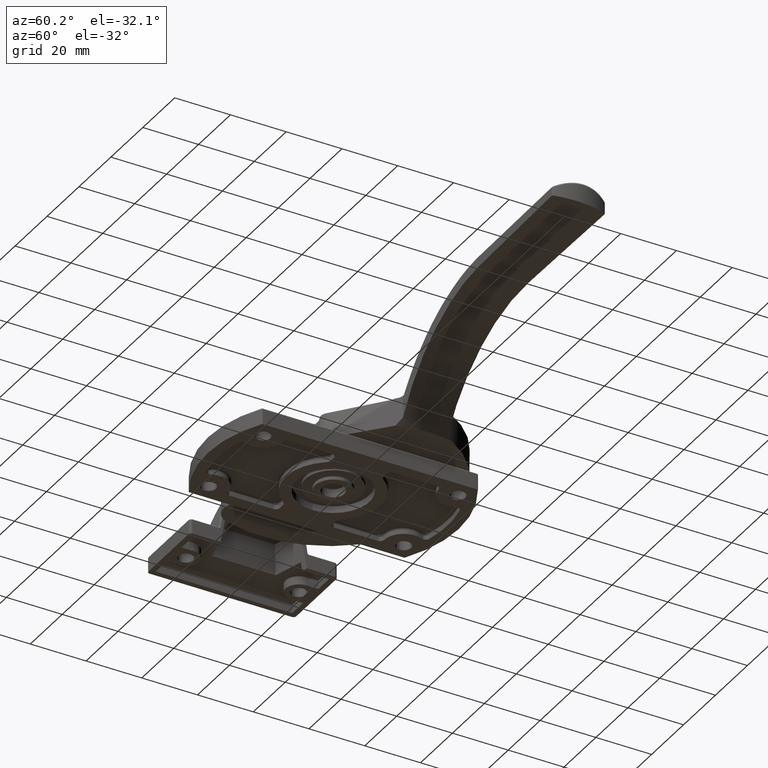
[diagram: clean part render]
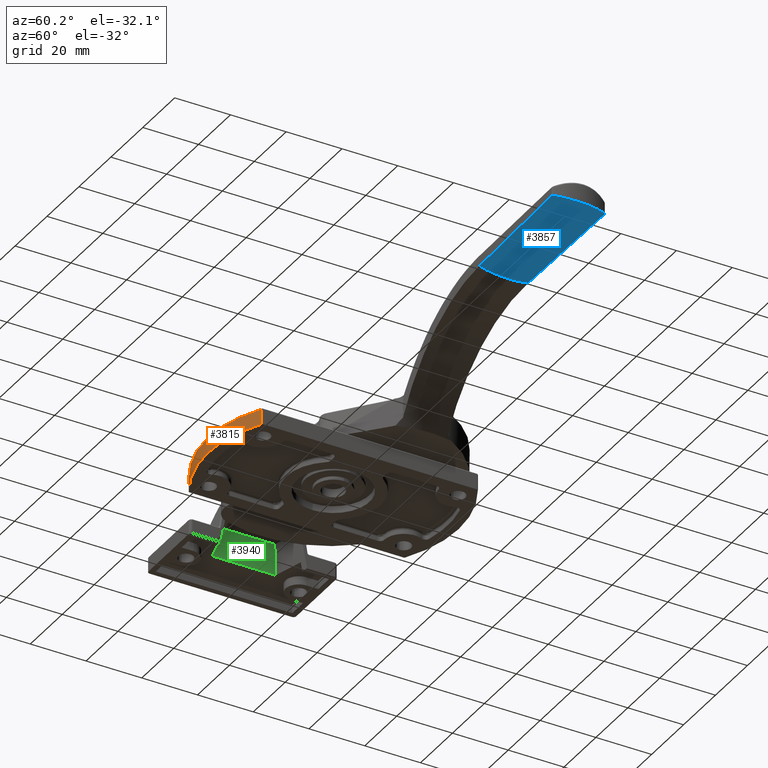
[diagram: same view with three faces highlighted in distinct colors, each labeled with its STEP entity id]
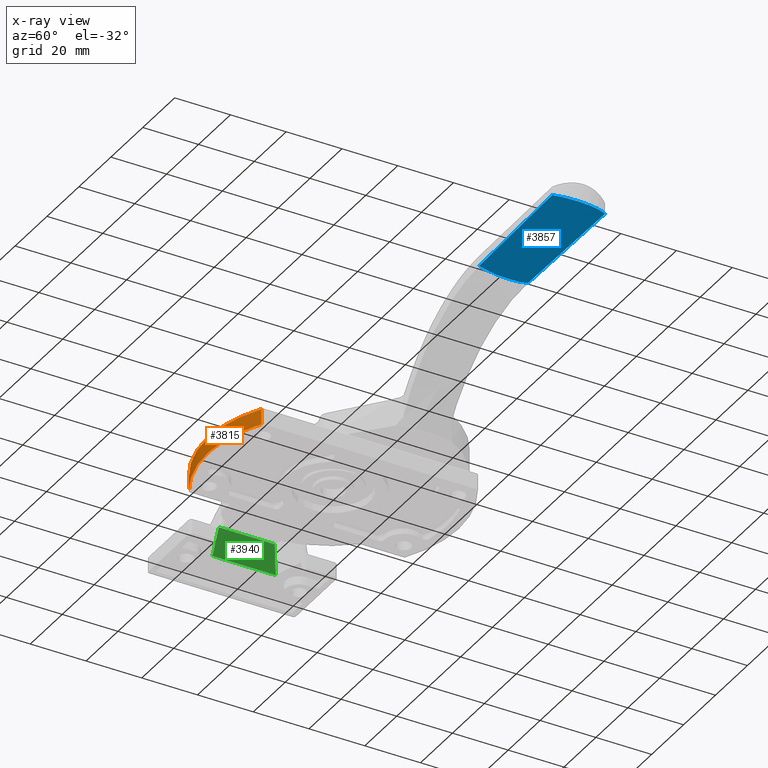
[diagram: x-ray of the same camera — body ghosted, the three highlighted faces saturated]
A machine part, auxiliary view with three faces highlighted in distinct colors.
The next image is the same camera in x-ray (body ghosted, the three faces saturated) — at least one of them is partly hidden behind the body in this view.
Their STEP definitions:

[orange] entity #3815 — the highlighted cylindrical surface (partial cylindrical patch) has radius 45 mm, axis along (0, 0, 1).
#398=LINE('',#6181,#588);
#401=LINE('',#6195,#591);
#588=VECTOR('',#4884,5.5);
#591=VECTOR('',#4899,5.5);
#767=CYLINDRICAL_SURFACE('',#4204,45.);
#905=FACE_OUTER_BOUND('',#1185,.T.);
#1185=EDGE_LOOP('',(#2992,#2993,#2994,#2995));
#1480=CIRCLE('',#4154,45.);
#1483=CIRCLE('',#4161,45.);
#1747=VERTEX_POINT('',#6174);
#1749=VERTEX_POINT('',#6179);
#1750=VERTEX_POINT('',#6184);
#1753=VERTEX_POINT('',#6191);
#2176=EDGE_CURVE('',#1749,#1747,#398,.T.);
#2183=EDGE_CURVE('',#1750,#1753,#401,.T.);
#2186=EDGE_CURVE('',#1747,#1750,#1480,.T.);
#2192=EDGE_CURVE('',#1753,#1749,#1483,.T.);
#2992=ORIENTED_EDGE('',*,*,#2176,.F.);
#2993=ORIENTED_EDGE('',*,*,#2192,.F.);
#2994=ORIENTED_EDGE('',*,*,#2183,.F.);
#2995=ORIENTED_EDGE('',*,*,#2186,.F.);
#3815=ADVANCED_FACE('',(#905),#767,.T.);
#4154=AXIS2_PLACEMENT_3D('',#6200,#4906,#4907);
#4161=AXIS2_PLACEMENT_3D('',#6210,#4923,#4924);
#4204=AXIS2_PLACEMENT_3D('',#6277,#5010,#5011);
#4884=DIRECTION('',(0.,0.,1.));
#4899=DIRECTION('',(0.,0.,-1.));
#4906=DIRECTION('center_axis',(0.,0.,1.));
#4907=DIRECTION('ref_axis',(-9.86864910777917E-17,-1.,0.));
#4923=DIRECTION('center_axis',(0.,0.,-1.));
#4924=DIRECTION('ref_axis',(0.511111111111111,0.859514649147276,0.));
#5010=DIRECTION('center_axis',(0.,0.,1.));
#5011=DIRECTION('ref_axis',(0.511111111111111,0.859514649147276,0.));
#6174=CARTESIAN_POINT('',(-22.752808988764,-38.8240863784432,5.5));
#6179=CARTESIAN_POINT('',(-22.752808988764,-38.8240863784432,0.));
#6181=CARTESIAN_POINT('',(-22.752808988764,-38.8240863784432,0.));
#6184=CARTESIAN_POINT('',(22.7528089887641,-38.8240863784432,5.5));
#6191=CARTESIAN_POINT('',(22.7528089887641,-38.8240863784432,0.));
#6195=CARTESIAN_POINT('',(22.7528089887641,-38.8240863784432,0.));
#6200=CARTESIAN_POINT('Origin',(0.,0.,5.5));
#6210=CARTESIAN_POINT('Origin',(0.,0.,0.));
#6277=CARTESIAN_POINT('Origin',(0.,0.,0.));

[blue] entity #3857 — the highlighted face is a freeform B-spline surface patch.
#36=ELLIPSE('',#4221,2195.21586477304,28.3443845894046);
#41=ELLIPSE('',#4273,2256.22541934231,29.8437002664591);
#42=ELLIPSE('',#4274,33.5910249434056,28.3412019856558);
#43=ELLIPSE('',#4275,33.1993586829871,27.6961764867833);
#71=B_SPLINE_CURVE_WITH_KNOTS('',3,(#6478,#6479,#6480,#6481,#6482,#6483,
#6484,#6485,#6486,#6487,#6488,#6489,#6490,#6491,#6492),.UNSPECIFIED.,.F.,
 .F.,(4,2,2,2,2,3,4),(-0.403748896427927,-0.391564392865693,-0.373066175315673,
-0.344292268642003,-0.342673066180087,-0.303347675352167,-0.301565401664158),
 .UNSPECIFIED.);
#80=B_SPLINE_CURVE_WITH_KNOTS('',3,(#6658,#6659,#6660,#6661,#6662,#6663,
#6664,#6665,#6666,#6667,#6668,#6669,#6670,#6671,#6672,#6673,#6674,#6675,
#6676),.UNSPECIFIED.,.F.,.F.,(4,3,3,3,3,3,4),(-0.318631087062474,-0.303105192737083,
-0.266615448663428,-0.262988060647947,-0.238894424742334,-0.222356568794436,
-0.217098713921147),.UNSPECIFIED.);
#105=B_SPLINE_CURVE_WITH_KNOTS('',3,(#7357,#7358,#7359,#7360,#7361,#7362,
#7363,#7364,#7365,#7366),.UNSPECIFIED.,.F.,.F.,(4,2,2,2,4),(-1.93355468607339,
-1.43182179041838,-0.966841580993429,-0.501074789223056,-1.00000000813338E-6),
 .UNSPECIFIED.);
#146=B_SPLINE_SURFACE_WITH_KNOTS('',3,1,((#7340,#7341),(#7342,#7343),(#7344,
#7345),(#7346,#7347),(#7348,#7349),(#7350,#7351)),.UNSPECIFIED.,.F.,.F.,
 .F.,(4,2,4),(2,2),(-1.97199814858881,-0.984353465451288,0.),(0.,6.),
 .UNSPECIFIED.);
#947=FACE_OUTER_BOUND('',#1228,.T.);
#1228=EDGE_LOOP('',(#3194,#3195,#3196,#3197,#3198,#3199,#3200));
#1792=VERTEX_POINT('',#6476);
#1793=VERTEX_POINT('',#6477);
#1800=VERTEX_POINT('',#6656);
#1801=VERTEX_POINT('',#6657);
#1807=VERTEX_POINT('',#6740);
#1856=VERTEX_POINT('',#7352);
#1857=VERTEX_POINT('',#7354);
#2234=EDGE_CURVE('',#1792,#1793,#71,.T.);
#2248=EDGE_CURVE('',#1800,#1801,#80,.T.);
#2258=EDGE_CURVE('',#1801,#1807,#36,.T.);
#2335=EDGE_CURVE('',#1856,#1792,#41,.T.);
#2336=EDGE_CURVE('',#1856,#1857,#42,.T.);
#2337=EDGE_CURVE('',#1857,#1807,#43,.T.);
#2338=EDGE_CURVE('',#1793,#1800,#105,.F.);
#3194=ORIENTED_EDGE('',*,*,#2234,.F.);
#3195=ORIENTED_EDGE('',*,*,#2335,.F.);
#3196=ORIENTED_EDGE('',*,*,#2336,.T.);
#3197=ORIENTED_EDGE('',*,*,#2337,.T.);
#3198=ORIENTED_EDGE('',*,*,#2258,.F.);
#3199=ORIENTED_EDGE('',*,*,#2248,.F.);
#3200=ORIENTED_EDGE('',*,*,#2338,.F.);
#3857=ADVANCED_FACE('',(#947),#146,.F.);
#4221=AXIS2_PLACEMENT_3D('',#6741,#5050,#5051);
#4273=AXIS2_PLACEMENT_3D('',#7353,#5176,#5177);
#4274=AXIS2_PLACEMENT_3D('',#7355,#5178,#5179);
#4275=AXIS2_PLACEMENT_3D('',#7356,#5180,#5181);
#5050=DIRECTION('center_axis',(-0.0153043405814483,0.999882881716922,2.97162599323551E-6));
#5051=DIRECTION('ref_axis',(0.99988288020561,0.0153043407218232,-5.50163912938806E-5));
#5176=DIRECTION('center_axis',(-0.0153043896381984,-0.999882880893219,1.24289784783181E-5));
#5177=DIRECTION('ref_axis',(0.999882861612256,-0.015304391786732,-0.000196586174440273));
#5178=DIRECTION('center_axis',(1.,0.,0.));
#5179=DIRECTION('ref_axis',(0.,0.999941474722648,0.010818832168725));
#5180=DIRECTION('center_axis',(1.,0.,0.));
#5181=DIRECTION('ref_axis',(0.,0.999996147888586,-0.00277564550869979));
#6476=CARTESIAN_POINT('',(130.459631911611,3.50827094970848,31.4353278240664));
#6477=CARTESIAN_POINT('',(131.312465663572,3.96176160244084,31.302302934872));
#6478=CARTESIAN_POINT('Ctrl Pts',(130.459631911611,3.50827095449852,31.4353278250005));
#6479=CARTESIAN_POINT('Ctrl Pts',(130.500192771122,3.50765012461252,31.4355141540835));
#6480=CARTESIAN_POINT('Ctrl Pts',(130.540754836247,3.50949784669686,31.4349593424549));
#6481=CARTESIAN_POINT('Ctrl Pts',(130.64233834006,3.52034310663397,31.4317061718413));
#6482=CARTESIAN_POINT('Ctrl Pts',(130.702746702021,3.53251445480254,31.4280558353544));
#6483=CARTESIAN_POINT('Ctrl Pts',(130.853067527023,3.57748846317043,31.4146144533403));
#6484=CARTESIAN_POINT('Ctrl Pts',(130.93971552623,3.61768815671983,31.4026288691662));
#6485=CARTESIAN_POINT('Ctrl Pts',(131.023549092756,3.6720604059617,31.386572890128));
#6486=CARTESIAN_POINT('Ctrl Pts',(131.027992296769,3.67499281524301,31.3857073344906));
#6487=CARTESIAN_POINT('Ctrl Pts',(131.139753147074,3.75004038330289,31.3635657598699));
#6488=CARTESIAN_POINT('Ctrl Pts',(131.231333987136,3.84172109105482,31.3367519110211));
#6489=CARTESIAN_POINT('Ctrl Pts',(131.302870075881,3.94732816259734,31.3064422990277));
#6490=CARTESIAN_POINT('Ctrl Pts',(131.306112176982,3.95211440138903,31.305068631161));
#6491=CARTESIAN_POINT('Ctrl Pts',(131.309310747789,3.95692579790013,31.3036887629505));
#6492=CARTESIAN_POINT('Ctrl Pts',(131.31246560391,3.96176163722768,31.3023029308471));
#6656=CARTESIAN_POINT('',(131.312465652355,22.0382384232498,30.4765663403502));
#6657=CARTESIAN_POINT('',(130.459631911526,22.4917290542913,30.5645681703279));
#6658=CARTESIAN_POINT('Ctrl Pts',(131.312465652163,22.0382384236894,30.4765663373362));
#6659=CARTESIAN_POINT('Ctrl Pts',(131.284626849629,22.0809107274509,30.4845842688606));
#6660=CARTESIAN_POINT('Ctrl Pts',(131.253490528459,22.1215115789276,30.4922871475));
#6661=CARTESIAN_POINT('Ctrl Pts',(131.219273858213,22.1596496762167,30.4995786440671));
#6662=CARTESIAN_POINT('Ctrl Pts',(131.138856104865,22.2492837662324,30.5167154890095));
#6663=CARTESIAN_POINT('Ctrl Pts',(131.04274265631,22.3238391911562,30.5312937458574));
#6664=CARTESIAN_POINT('Ctrl Pts',(130.93542503811,22.3795116938964,30.5422705108717));
#6665=CARTESIAN_POINT('Ctrl Pts',(130.924756762626,22.385046009753,30.5433616938019));
#6666=CARTESIAN_POINT('Ctrl Pts',(130.913977751217,22.3903936953722,30.5444173324891));
#6667=CARTESIAN_POINT('Ctrl Pts',(130.903092391369,22.3955509479597,30.5454364405762));
#6668=CARTESIAN_POINT('Ctrl Pts',(130.830790256674,22.4298061656497,30.5522055039062));
#6669=CARTESIAN_POINT('Ctrl Pts',(130.754541956229,22.455306890406,30.5572898016257));
#6670=CARTESIAN_POINT('Ctrl Pts',(130.675955484532,22.471433470627,30.5605099400434));
#6671=CARTESIAN_POINT('Ctrl Pts',(130.622013781692,22.4825027447569,30.56272024095));
#6672=CARTESIAN_POINT('Ctrl Pts',(130.567230511522,22.4891017378242,30.5640421297185));
#6673=CARTESIAN_POINT('Ctrl Pts',(130.512160775612,22.4911531048381,30.5644528503167));
#6674=CARTESIAN_POINT('Ctrl Pts',(130.494652539947,22.4918052927689,30.564583430079));
#6675=CARTESIAN_POINT('Ctrl Pts',(130.477136915966,22.4919969936148,30.5646218208552));
#6676=CARTESIAN_POINT('Ctrl Pts',(130.459631911437,22.4917290598689,30.5645681714153));
#6740=CARTESIAN_POINT('',(83.9999999996627,21.78061223005,30.4290563323721));
#6741=CARTESIAN_POINT('Origin',(-385.001936093096,14.6019236516229,58.1446402419015));
#7340=CARTESIAN_POINT('Ctrl Pts',(84.,22.8179565664004,30.6313484370282));
#7341=CARTESIAN_POINT('Ctrl Pts',(144.,22.8179565664004,30.6313484370282));
#7342=CARTESIAN_POINT('Ctrl Pts',(84.,19.5956410962345,29.9572837016584));
#7343=CARTESIAN_POINT('Ctrl Pts',(144.,19.5956410962345,29.9572837016584));
#7344=CARTESIAN_POINT('Ctrl Pts',(84.,16.2845638955336,29.693672868811));
#7345=CARTESIAN_POINT('Ctrl Pts',(144.,16.2845638955336,29.693672868811));
#7346=CARTESIAN_POINT('Ctrl Pts',(84.,9.71811335735494,29.9828599947235));
#7347=CARTESIAN_POINT('Ctrl Pts',(144.,9.71811335735494,29.9828599947235));
#7348=CARTESIAN_POINT('Ctrl Pts',(84.,6.45563360636663,30.5332466994185));
#7349=CARTESIAN_POINT('Ctrl Pts',(144.,6.45563360636663,30.5332466994185));
#7350=CARTESIAN_POINT('Ctrl Pts',(84.,3.31795656640048,31.4929931723314));
#7351=CARTESIAN_POINT('Ctrl Pts',(144.,3.31795656640048,31.4929931723314));
#7352=CARTESIAN_POINT('',(83.9999999995269,4.21938777200684,31.2294550872477));
#7353=CARTESIAN_POINT('Origin',(-637.653350213972,15.2654989561184,59.6468956748392));
#7354=CARTESIAN_POINT('',(84.,14.7458558788617,29.8000000465788));
#7355=CARTESIAN_POINT('Origin',(84.,14.8702487251519,58.1418734582594));
#7356=CARTESIAN_POINT('Origin',(84.,14.7122374126722,57.4962230965607));
#7357=CARTESIAN_POINT('Ctrl Pts',(131.312465652514,22.038238423152,30.4765663414182));
#7358=CARTESIAN_POINT('Ctrl Pts',(132.215006927688,20.6547911556235,30.2166235030179));
#7359=CARTESIAN_POINT('Ctrl Pts',(132.909443463987,19.1379887676367,30.0106086150998));
#7360=CARTESIAN_POINT('Ctrl Pts',(133.790587256237,16.0456737629044,29.7932322168081));
#7361=CARTESIAN_POINT('Ctrl Pts',(134.003821640892,14.5073543421824,29.7705035729974));
#7362=CARTESIAN_POINT('Ctrl Pts',(133.996068338337,11.4072843114278,29.9099439629831));
#7363=CARTESIAN_POINT('Ctrl Pts',(133.774477287608,9.87516430812761,30.0710988441271));
#7364=CARTESIAN_POINT('Ctrl Pts',(132.888976248278,6.81559313467109,30.5681981968508));
#7365=CARTESIAN_POINT('Ctrl Pts',(132.199872890573,5.32201086047218,30.9124890979143));
#7366=CARTESIAN_POINT('Ctrl Pts',(131.312465667065,3.96176159915276,31.3023029417584));

[green] entity #3940 — the highlighted planar face has unit normal (-0.9848, -0, 0.1736).
#304=PLANE('',#4432);
#471=LINE('',#8305,#661);
#497=LINE('',#8381,#687);
#503=LINE('',#8391,#693);
#504=LINE('',#8393,#694);
#661=VECTOR('',#5495,20.0510234057126);
#687=VECTOR('',#5553,10.2405469003895);
#693=VECTOR('',#5561,10.2405469003895);
#694=VECTOR('',#5564,22.7040823243952);
#1030=FACE_OUTER_BOUND('',#1325,.T.);
#1325=EDGE_LOOP('',(#3589,#3590,#3591,#3592));
#1950=VERTEX_POINT('',#8302);
#1951=VERTEX_POINT('',#8304);
#1976=VERTEX_POINT('',#8380);
#1979=VERTEX_POINT('',#8389);
#2489=EDGE_CURVE('',#1950,#1951,#471,.T.);
#2523=EDGE_CURVE('',#1976,#1951,#497,.T.);
#2529=EDGE_CURVE('',#1979,#1950,#503,.T.);
#2530=EDGE_CURVE('',#1976,#1979,#504,.T.);
#3589=ORIENTED_EDGE('',*,*,#2530,.F.);
#3590=ORIENTED_EDGE('',*,*,#2523,.T.);
#3591=ORIENTED_EDGE('',*,*,#2489,.F.);
#3592=ORIENTED_EDGE('',*,*,#2529,.F.);
#3940=ADVANCED_FACE('',(#1030),#304,.F.);
#4432=AXIS2_PLACEMENT_3D('',#8392,#5562,#5563);
#5495=DIRECTION('',(0.,1.,0.));
#5553=DIRECTION('',(0.172185120993644,-0.129536974171847,0.976510346299929));
#5561=DIRECTION('',(0.172185120993644,0.129536974171847,0.976510346299929));
#5562=DIRECTION('center_axis',(-0.984807753012208,0.,0.17364817766693));
#5563=DIRECTION('ref_axis',(0.,-1.,0.));
#5564=DIRECTION('',(0.,-1.,0.));
#8302=CARTESIAN_POINT('',(2.79225074921004,-10.0255117028563,13.));
#8304=CARTESIAN_POINT('',(2.79225074921004,10.0255117028563,13.));
#8305=CARTESIAN_POINT('',(2.79225074921004,11.75,13.));
#8380=CARTESIAN_POINT('',(1.02898094212539,11.3520411621976,3.));
#8381=CARTESIAN_POINT('',(0.762075989958426,11.5528370247882,1.48630679720954));
#8389=CARTESIAN_POINT('',(1.02898094212539,-11.3520411621976,3.));
#8391=CARTESIAN_POINT('',(0.650889516599876,-11.6364839696845,0.855736972263799));
#8392=CARTESIAN_POINT('Origin',(0.499999999999999,-11.75,0.));
#8393=CARTESIAN_POINT('',(1.02898094212539,-5.875,3.));